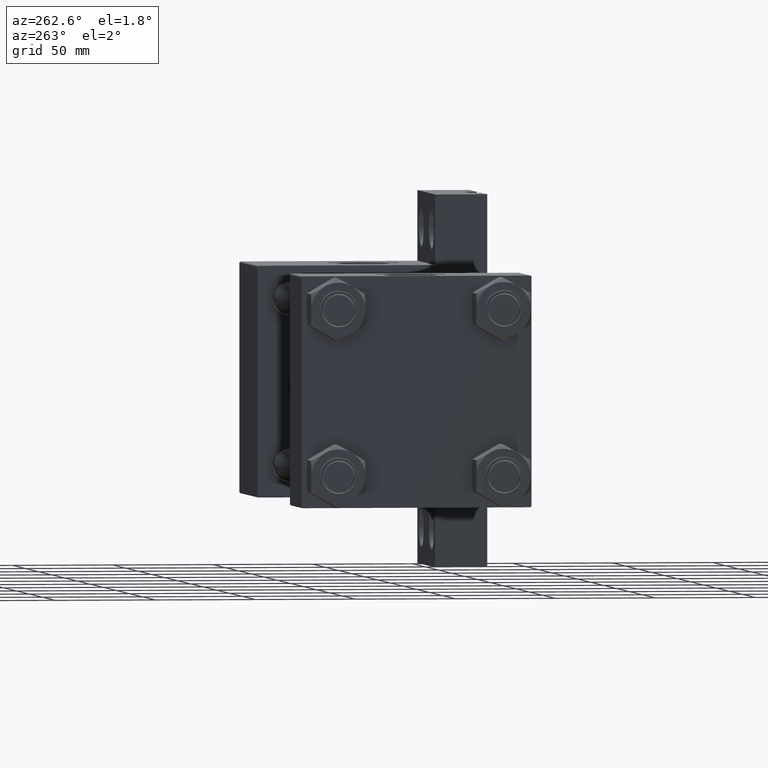
[diagram: clean part render]
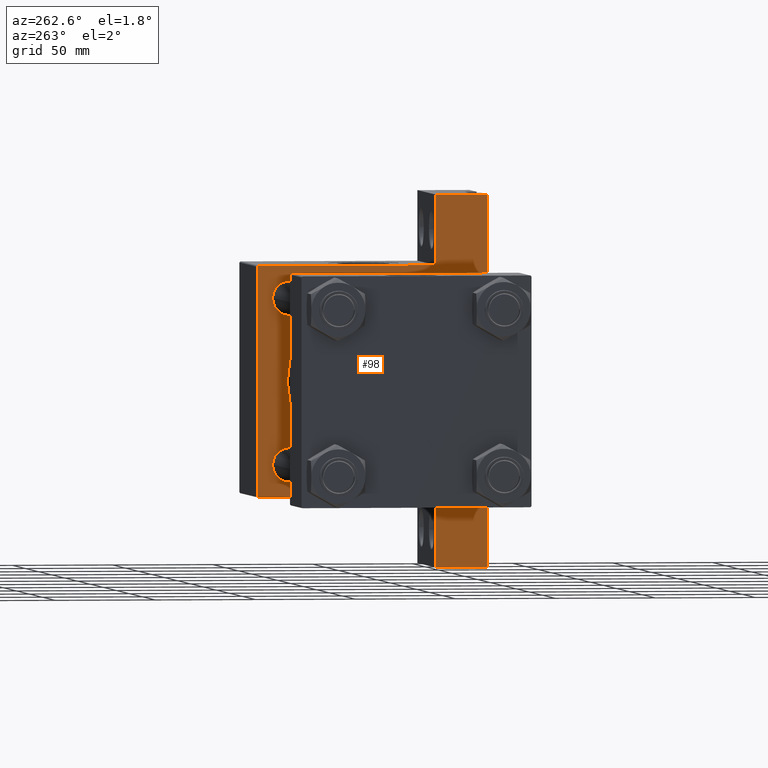
[diagram: same view with one face highlighted and labeled with its STEP entity id]
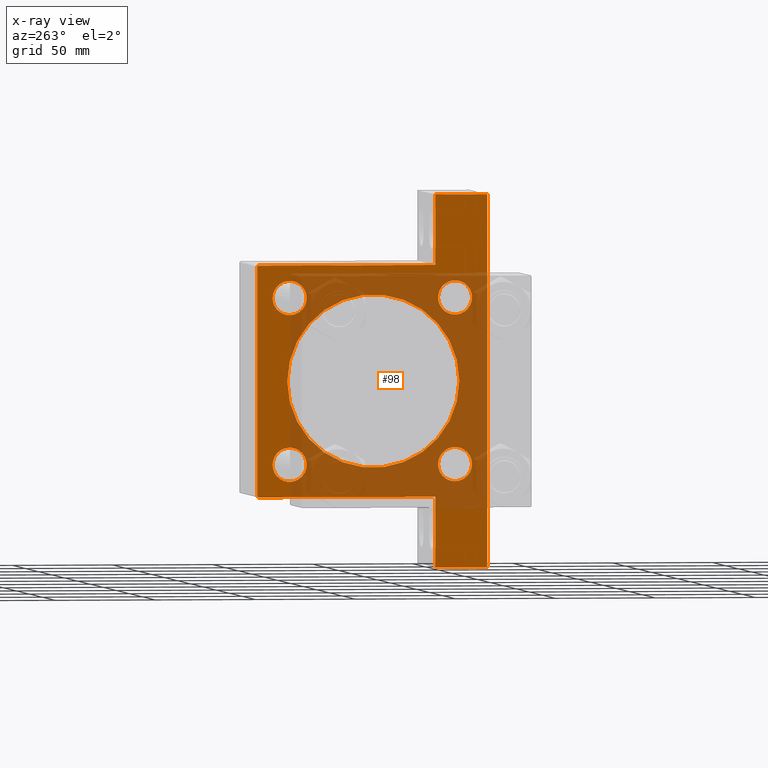
[diagram: x-ray of the same camera — body ghosted, the highlighted face saturated]
A machine part, auxiliary view. The second image highlights one B-rep face of the part: STEP entity #98.
The next image is the same camera in x-ray: the body ghosted, the highlighted face saturated — about 56% of this face is hidden behind the body in this view.
In plain terms, the highlighted planar face has unit normal (-1, 0, -0).
Its self-contained STEP definition (entity closure, byte-faithful):
#98 = ADVANCED_FACE ( 'NONE', ( #45930, #12123, #38392, #34270, #931, #30868 ), #5053, .T. ) ;
#141 = VERTEX_POINT ( 'NONE', #35241 ) ;
#184 = EDGE_CURVE ( 'NONE', #5102, #14754, #32276, .T. ) ;
#298 = VERTEX_POINT ( 'NONE', #33733 ) ;
#905 = CARTESIAN_POINT ( 'NONE',  ( 169.9999999999999716, 41.34999999999999432, 32.84999999999999432 ) ) ;
#931 = FACE_BOUND ( 'NONE', #41959, .T. ) ;
#955 = VECTOR ( 'NONE', #2999, 1000.000000000000000 ) ;
#1796 = EDGE_LOOP ( 'NONE', ( #26816, #43580 ) ) ;
#2313 = VERTEX_POINT ( 'NONE', #12142 ) ;
#2562 = LINE ( 'NONE', #35181, #21368 ) ;
#2600 = VERTEX_POINT ( 'NONE', #35679 ) ;
#2753 = AXIS2_PLACEMENT_3D ( 'NONE', #13808, #46659, #6035 ) ;
#2999 = DIRECTION ( 'NONE',  ( 0.000000000000000000, 0.000000000000000000, -1.000000000000000000 ) ) ;
#3443 = DIRECTION ( 'NONE',  ( 0.000000000000000000, 0.000000000000000000, 1.000000000000000000 ) ) ;
#3459 = AXIS2_PLACEMENT_3D ( 'NONE', #22086, #25495, #14300 ) ;
#3911 = CARTESIAN_POINT ( 'NONE',  ( 169.9999999999999716, -56.99999999999998579, 57.49999999999999289 ) ) ;
#4226 = CIRCLE ( 'NONE', #31428, 8.500000000000007105 ) ;
#4502 = AXIS2_PLACEMENT_3D ( 'NONE', #26416, #41245, #41483 ) ;
#4793 = CARTESIAN_POINT ( 'NONE',  ( 169.9999999999999716, 41.34999999999999432, -41.35000000000000142 ) ) ;
#4909 = VECTOR ( 'NONE', #35991, 1000.000000000000000 ) ;
#5053 = PLANE ( 'NONE',  #23724 ) ;
#5084 = CARTESIAN_POINT ( 'NONE',  ( 169.9999999999999716, -41.34999999999998721, -41.35000000000000853 ) ) ;
#5102 = VERTEX_POINT ( 'NONE', #45398 ) ;
#5583 = LINE ( 'NONE', #9715, #32986 ) ;
#6035 = DIRECTION ( 'NONE',  ( 0.000000000000000000, 0.000000000000000000, 1.000000000000000000 ) ) ;
#6156 = CIRCLE ( 'NONE', #23230, 8.500000000000007105 ) ;
#6555 = CIRCLE ( 'NONE', #3459, 43.00000000000000000 ) ;
#7125 = ORIENTED_EDGE ( 'NONE', *, *, #41582, .F. ) ;
#7176 = VERTEX_POINT ( 'NONE', #38676 ) ;
#7334 = DIRECTION ( 'NONE',  ( 1.000000000000000000, -0.000000000000000000, 0.000000000000000000 ) ) ;
#7425 = DIRECTION ( 'NONE',  ( 0.000000000000000000, 0.000000000000000000, -1.000000000000000000 ) ) ;
#7456 = VECTOR ( 'NONE', #21041, 1000.000000000000000 ) ;
#8473 = CARTESIAN_POINT ( 'NONE',  ( 169.9999999999999716, 0.000000000000000000, 0.000000000000000000 ) ) ;
#8591 = EDGE_CURVE ( 'NONE', #141, #29229, #15438, .T. ) ;
#8928 = CARTESIAN_POINT ( 'NONE',  ( 169.9999999999999716, 6.123233995736685917E-17, 42.50000000000000000 ) ) ;
#9511 = CIRCLE ( 'NONE', #42907, 43.00000000000000000 ) ;
#9526 = DIRECTION ( 'NONE',  ( -0.000000000000000000, 0.7071067811865328068, 0.7071067811865622277 ) ) ;
#9715 = CARTESIAN_POINT ( 'NONE',  ( 169.9999999999999716, -92.50000000000002842, -31.49999999999997158 ) ) ;
#10087 = CARTESIAN_POINT ( 'NONE',  ( 170.0000000000000000, 92.50000000000000000, -31.49999999999997158 ) ) ;
#10259 = VECTOR ( 'NONE', #38041, 1000.000000000000114 ) ;
#10645 = EDGE_LOOP ( 'NONE', ( #32358, #33080, #20291, #28100, #46735, #34033, #7125, #21267, #47252, #18632 ) ) ;
#10815 = EDGE_CURVE ( 'NONE', #14754, #5102, #29392, .T. ) ;
#11224 = ORIENTED_EDGE ( 'NONE', *, *, #29702, .T. ) ;
#11670 = CARTESIAN_POINT ( 'NONE',  ( 169.9999999999999716, -57.49999999999999289, 56.99999999999996447 ) ) ;
#12123 = FACE_BOUND ( 'NONE', #45630, .T. ) ;
#12142 = CARTESIAN_POINT ( 'NONE',  ( 169.9999999999999716, 57.50000000000000000, -31.49999999999997158 ) ) ;
#12448 = ORIENTED_EDGE ( 'NONE', *, *, #43096, .T. ) ;
#12774 = CARTESIAN_POINT ( 'NONE',  ( 169.9999999999999716, -41.34999999999998721, 49.85000000000002274 ) ) ;
#13131 = CARTESIAN_POINT ( 'NONE',  ( 169.9999999999999716, -92.50000000000002842, -31.49999999999997158 ) ) ;
#13370 = VERTEX_POINT ( 'NONE', #21910 ) ;
#13581 = EDGE_CURVE ( 'NONE', #35553, #33606, #6156, .T. ) ;
#13808 = CARTESIAN_POINT ( 'NONE',  ( 169.9999999999999716, 41.34999999999999432, 41.35000000000000142 ) ) ;
#13849 = CARTESIAN_POINT ( 'NONE',  ( 169.9999999999999716, 57.50000000000000000, -57.49999999999996447 ) ) ;
#13986 = LINE ( 'NONE', #10087, #7456 ) ;
#14010 = DIRECTION ( 'NONE',  ( 0.000000000000000000, 0.000000000000000000, 1.000000000000000000 ) ) ;
#14030 = EDGE_CURVE ( 'NONE', #15852, #7176, #16296, .T. ) ;
#14300 = DIRECTION ( 'NONE',  ( 0.000000000000000000, 0.000000000000000000, -1.000000000000000000 ) ) ;
#14404 = VERTEX_POINT ( 'NONE', #11670 ) ;
#14754 = VERTEX_POINT ( 'NONE', #905 ) ;
#14863 = CIRCLE ( 'NONE', #27293, 8.500000000000007105 ) ;
#15328 = ORIENTED_EDGE ( 'NONE', *, *, #35639, .T. ) ;
#15438 = LINE ( 'NONE', #18616, #16915 ) ;
#15491 = AXIS2_PLACEMENT_3D ( 'NONE', #24967, #47335, #14010 ) ;
#15852 = VERTEX_POINT ( 'NONE', #12774 ) ;
#16155 = LINE ( 'NONE', #30992, #10259 ) ;
#16296 = CIRCLE ( 'NONE', #15491, 8.500000000000007105 ) ;
#16706 = DIRECTION ( 'NONE',  ( 0.000000000000000000, -1.000000000000000000, -1.206764157201257291E-16 ) ) ;
#16915 = VECTOR ( 'NONE', #19559, 1000.000000000000000 ) ;
#17789 = CARTESIAN_POINT ( 'NONE',  ( 169.9999999999999716, 57.00000000000005684, 57.50000000000000711 ) ) ;
#18299 = AXIS2_PLACEMENT_3D ( 'NONE', #21934, #7334, #30203 ) ;
#18616 = CARTESIAN_POINT ( 'NONE',  ( 170.0000000000000000, 92.50000000000000000, -31.49999999999997158 ) ) ;
#18632 = ORIENTED_EDGE ( 'NONE', *, *, #28093, .T. ) ;
#18692 = CARTESIAN_POINT ( 'NONE',  ( 169.9999999999999716, -41.34999999999998721, -41.35000000000000853 ) ) ;
#19559 = DIRECTION ( 'NONE',  ( 0.000000000000000000, 0.000000000000000000, -1.000000000000000000 ) ) ;
#20291 = ORIENTED_EDGE ( 'NONE', *, *, #41928, .T. ) ;
#20901 = CARTESIAN_POINT ( 'NONE',  ( 169.9999999999999716, 41.34999999999999432, -49.85000000000001563 ) ) ;
#21041 = DIRECTION ( 'NONE',  ( 7.930164461608261426E-16, 1.000000000000000000, -0.000000000000000000 ) ) ;
#21267 = ORIENTED_EDGE ( 'NONE', *, *, #29470, .T. ) ;
#21368 = VECTOR ( 'NONE', #16706, 1000.000000000000000 ) ;
#21910 = CARTESIAN_POINT ( 'NONE',  ( 169.9999999999999716, -57.49999999999999289, -31.49999999999997158 ) ) ;
#21934 = CARTESIAN_POINT ( 'NONE',  ( 169.9999999999999716, 41.34999999999999432, -41.35000000000000142 ) ) ;
#21960 = EDGE_CURVE ( 'NONE', #29425, #25706, #14863, .T. ) ;
#22086 = CARTESIAN_POINT ( 'NONE',  ( 169.9999999999999716, 6.123233995736685917E-17, -0.4999999999999935052 ) ) ;
#23230 = AXIS2_PLACEMENT_3D ( 'NONE', #5084, #34540, #42545 ) ;
#23607 = VECTOR ( 'NONE', #9526, 1000.000000000000000 ) ;
#23724 = AXIS2_PLACEMENT_3D ( 'NONE', #8473, #30627, #41793 ) ;
#24123 = CARTESIAN_POINT ( 'NONE',  ( 169.9999999999999716, -57.25000000000117240, 57.24999999999879208 ) ) ;
#24478 = VECTOR ( 'NONE', #33880, 1000.000000000000000 ) ;
#24967 = CARTESIAN_POINT ( 'NONE',  ( 169.9999999999999716, -41.34999999999998721, 41.35000000000000853 ) ) ;
#25495 = DIRECTION ( 'NONE',  ( 1.000000000000000000, 0.000000000000000000, 0.000000000000000000 ) ) ;
#25706 = VERTEX_POINT ( 'NONE', #30482 ) ;
#25913 = LINE ( 'NONE', #47325, #32983 ) ;
#26075 = CIRCLE ( 'NONE', #18299, 8.500000000000007105 ) ;
#26314 = VERTEX_POINT ( 'NONE', #8928 ) ;
#26416 = CARTESIAN_POINT ( 'NONE',  ( 169.9999999999999716, 41.34999999999999432, 41.35000000000000142 ) ) ;
#26470 = DIRECTION ( 'NONE',  ( 1.000000000000000000, -0.000000000000000000, 0.000000000000000000 ) ) ;
#26816 = ORIENTED_EDGE ( 'NONE', *, *, #43013, .T. ) ;
#26822 = LINE ( 'NONE', #41878, #24478 ) ;
#26933 = EDGE_CURVE ( 'NONE', #29229, #2600, #39163, .T. ) ;
#27185 = DIRECTION ( 'NONE',  ( 0.000000000000000000, 0.000000000000000000, 1.000000000000000000 ) ) ;
#27293 = AXIS2_PLACEMENT_3D ( 'NONE', #4793, #44957, #27185 ) ;
#28093 = EDGE_CURVE ( 'NONE', #14404, #30232, #31681, .T. ) ;
#28100 = ORIENTED_EDGE ( 'NONE', *, *, #44663, .T. ) ;
#28798 = CARTESIAN_POINT ( 'NONE',  ( 169.9999999999999716, -57.49999999999999289, 57.49999999999999289 ) ) ;
#29229 = VERTEX_POINT ( 'NONE', #36037 ) ;
#29392 = CIRCLE ( 'NONE', #4502, 8.500000000000007105 ) ;
#29403 = CARTESIAN_POINT ( 'NONE',  ( 169.9999999999999716, -41.34999999999998721, -49.85000000000002274 ) ) ;
#29425 = VERTEX_POINT ( 'NONE', #20901 ) ;
#29470 = EDGE_CURVE ( 'NONE', #42290, #13370, #5583, .T. ) ;
#29702 = EDGE_CURVE ( 'NONE', #33606, #35553, #4226, .T. ) ;
#30203 = DIRECTION ( 'NONE',  ( 0.000000000000000000, 0.000000000000000000, 1.000000000000000000 ) ) ;
#30232 = VERTEX_POINT ( 'NONE', #3911 ) ;
#30427 = CARTESIAN_POINT ( 'NONE',  ( 169.9999999999999716, 57.50000000000000000, 57.00000000000006395 ) ) ;
#30482 = CARTESIAN_POINT ( 'NONE',  ( 169.9999999999999716, 41.34999999999999432, -32.84999999999999432 ) ) ;
#30627 = DIRECTION ( 'NONE',  ( -1.000000000000000000, 0.000000000000000000, -0.000000000000000000 ) ) ;
#30868 = FACE_OUTER_BOUND ( 'NONE', #10645, .T. ) ;
#30992 = CARTESIAN_POINT ( 'NONE',  ( 169.9999999999999716, 57.25000000000003553, 57.25000000000003553 ) ) ;
#31428 = AXIS2_PLACEMENT_3D ( 'NONE', #18692, #26470, #41298 ) ;
#31681 = LINE ( 'NONE', #24123, #23607 ) ;
#31733 = EDGE_CURVE ( 'NONE', #34509, #36479, #16155, .T. ) ;
#31941 = EDGE_LOOP ( 'NONE', ( #11224, #47455 ) ) ;
#32276 = CIRCLE ( 'NONE', #2753, 8.500000000000007105 ) ;
#32358 = ORIENTED_EDGE ( 'NONE', *, *, #47139, .F. ) ;
#32571 = CARTESIAN_POINT ( 'NONE',  ( 169.9999999999999716, 6.123233995736685917E-17, -0.4999999999999935052 ) ) ;
#32983 = VECTOR ( 'NONE', #7425, 1000.000000000000000 ) ;
#32986 = VECTOR ( 'NONE', #35517, 1000.000000000000000 ) ;
#33055 = AXIS2_PLACEMENT_3D ( 'NONE', #33846, #47966, #3443 ) ;
#33080 = ORIENTED_EDGE ( 'NONE', *, *, #31733, .T. ) ;
#33606 = VERTEX_POINT ( 'NONE', #39086 ) ;
#33733 = CARTESIAN_POINT ( 'NONE',  ( 169.9999999999999716, 5.327213576290985256E-15, -43.49999999999999289 ) ) ;
#33818 = CIRCLE ( 'NONE', #33055, 8.500000000000007105 ) ;
#33846 = CARTESIAN_POINT ( 'NONE',  ( 169.9999999999999716, -41.34999999999998721, 41.35000000000000853 ) ) ;
#33880 = DIRECTION ( 'NONE',  ( 0.000000000000000000, 0.000000000000000000, -1.000000000000000000 ) ) ;
#34033 = ORIENTED_EDGE ( 'NONE', *, *, #26933, .T. ) ;
#34270 = FACE_BOUND ( 'NONE', #31941, .T. ) ;
#34509 = VERTEX_POINT ( 'NONE', #17789 ) ;
#34540 = DIRECTION ( 'NONE',  ( 1.000000000000000000, -0.000000000000000000, 0.000000000000000000 ) ) ;
#35027 = EDGE_CURVE ( 'NONE', #14404, #13370, #40702, .T. ) ;
#35181 = CARTESIAN_POINT ( 'NONE',  ( 169.9999999999999716, 57.50000000000000000, 57.50000000000000711 ) ) ;
#35241 = CARTESIAN_POINT ( 'NONE',  ( 170.0000000000000000, 92.50000000000000000, -31.49999999999997158 ) ) ;
#35517 = DIRECTION ( 'NONE',  ( 0.000000000000000000, 1.000000000000000000, 0.000000000000000000 ) ) ;
#35553 = VERTEX_POINT ( 'NONE', #29403 ) ;
#35639 = EDGE_CURVE ( 'NONE', #26314, #298, #9511, .T. ) ;
#35679 = CARTESIAN_POINT ( 'NONE',  ( 169.9999999999999716, -92.50000000000002842, -57.49999999999997158 ) ) ;
#35991 = DIRECTION ( 'NONE',  ( 0.000000000000000000, -1.000000000000000000, -1.206764157201257291E-16 ) ) ;
#36037 = CARTESIAN_POINT ( 'NONE',  ( 170.0000000000000000, 92.50000000000000000, -57.49999999999997158 ) ) ;
#36479 = VERTEX_POINT ( 'NONE', #30427 ) ;
#37241 = ORIENTED_EDGE ( 'NONE', *, *, #10815, .T. ) ;
#37549 = ORIENTED_EDGE ( 'NONE', *, *, #41275, .T. ) ;
#38041 = DIRECTION ( 'NONE',  ( 0.000000000000000000, 0.7071067811865474617, -0.7071067811865474617 ) ) ;
#38392 = FACE_BOUND ( 'NONE', #1796, .T. ) ;
#38676 = CARTESIAN_POINT ( 'NONE',  ( 169.9999999999999716, -41.34999999999998721, 32.85000000000000142 ) ) ;
#38686 = ORIENTED_EDGE ( 'NONE', *, *, #184, .T. ) ;
#39086 = CARTESIAN_POINT ( 'NONE',  ( 169.9999999999999716, -41.34999999999998721, -32.85000000000000142 ) ) ;
#39163 = LINE ( 'NONE', #13849, #4909 ) ;
#39870 = DIRECTION ( 'NONE',  ( 0.000000000000000000, 0.000000000000000000, -1.000000000000000000 ) ) ;
#40702 = LINE ( 'NONE', #28798, #955 ) ;
#41245 = DIRECTION ( 'NONE',  ( 1.000000000000000000, -0.000000000000000000, 0.000000000000000000 ) ) ;
#41275 = EDGE_CURVE ( 'NONE', #298, #26314, #6555, .T. ) ;
#41298 = DIRECTION ( 'NONE',  ( 0.000000000000000000, 0.000000000000000000, 1.000000000000000000 ) ) ;
#41483 = DIRECTION ( 'NONE',  ( 0.000000000000000000, 0.000000000000000000, 1.000000000000000000 ) ) ;
#41582 = EDGE_CURVE ( 'NONE', #42290, #2600, #25913, .T. ) ;
#41793 = DIRECTION ( 'NONE',  ( -0.000000000000000000, 0.000000000000000000, 1.000000000000000000 ) ) ;
#41878 = CARTESIAN_POINT ( 'NONE',  ( 169.9999999999999716, 57.50000000000000000, 57.50000000000000711 ) ) ;
#41928 = EDGE_CURVE ( 'NONE', #36479, #2313, #26822, .T. ) ;
#41959 = EDGE_LOOP ( 'NONE', ( #15328, #37549 ) ) ;
#42132 = ORIENTED_EDGE ( 'NONE', *, *, #14030, .T. ) ;
#42290 = VERTEX_POINT ( 'NONE', #13131 ) ;
#42545 = DIRECTION ( 'NONE',  ( 0.000000000000000000, 0.000000000000000000, 1.000000000000000000 ) ) ;
#42907 = AXIS2_PLACEMENT_3D ( 'NONE', #32571, #47638, #39870 ) ;
#43013 = EDGE_CURVE ( 'NONE', #25706, #29425, #26075, .T. ) ;
#43096 = EDGE_CURVE ( 'NONE', #7176, #15852, #33818, .T. ) ;
#43580 = ORIENTED_EDGE ( 'NONE', *, *, #21960, .T. ) ;
#44663 = EDGE_CURVE ( 'NONE', #2313, #141, #13986, .T. ) ;
#44957 = DIRECTION ( 'NONE',  ( 1.000000000000000000, -0.000000000000000000, 0.000000000000000000 ) ) ;
#45398 = CARTESIAN_POINT ( 'NONE',  ( 169.9999999999999716, 41.34999999999999432, 49.85000000000001563 ) ) ;
#45630 = EDGE_LOOP ( 'NONE', ( #38686, #37241 ) ) ;
#45930 = FACE_BOUND ( 'NONE', #46993, .T. ) ;
#46659 = DIRECTION ( 'NONE',  ( 1.000000000000000000, -0.000000000000000000, 0.000000000000000000 ) ) ;
#46735 = ORIENTED_EDGE ( 'NONE', *, *, #8591, .T. ) ;
#46993 = EDGE_LOOP ( 'NONE', ( #42132, #12448 ) ) ;
#47139 = EDGE_CURVE ( 'NONE', #34509, #30232, #2562, .T. ) ;
#47252 = ORIENTED_EDGE ( 'NONE', *, *, #35027, .F. ) ;
#47325 = CARTESIAN_POINT ( 'NONE',  ( 169.9999999999999716, -92.50000000000002842, -31.49999999999997158 ) ) ;
#47335 = DIRECTION ( 'NONE',  ( 1.000000000000000000, -0.000000000000000000, 0.000000000000000000 ) ) ;
#47455 = ORIENTED_EDGE ( 'NONE', *, *, #13581, .T. ) ;
#47638 = DIRECTION ( 'NONE',  ( 1.000000000000000000, 0.000000000000000000, 0.000000000000000000 ) ) ;
#47966 = DIRECTION ( 'NONE',  ( 1.000000000000000000, -0.000000000000000000, 0.000000000000000000 ) ) ;